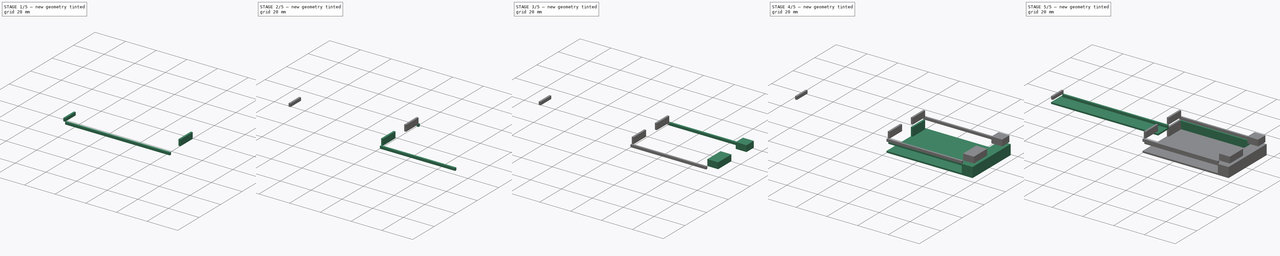
[diagram: build sequence overview — one tinted view per stage of 5, left to right]
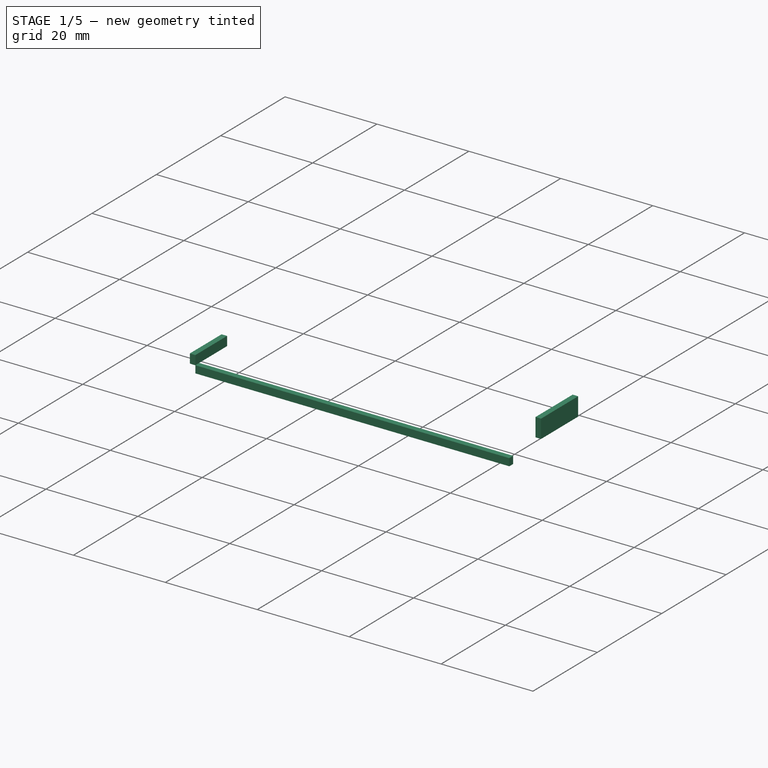
[diagram: stage 1 of 5 — iso view after this stage's code; geometry added in this stage tinted green]
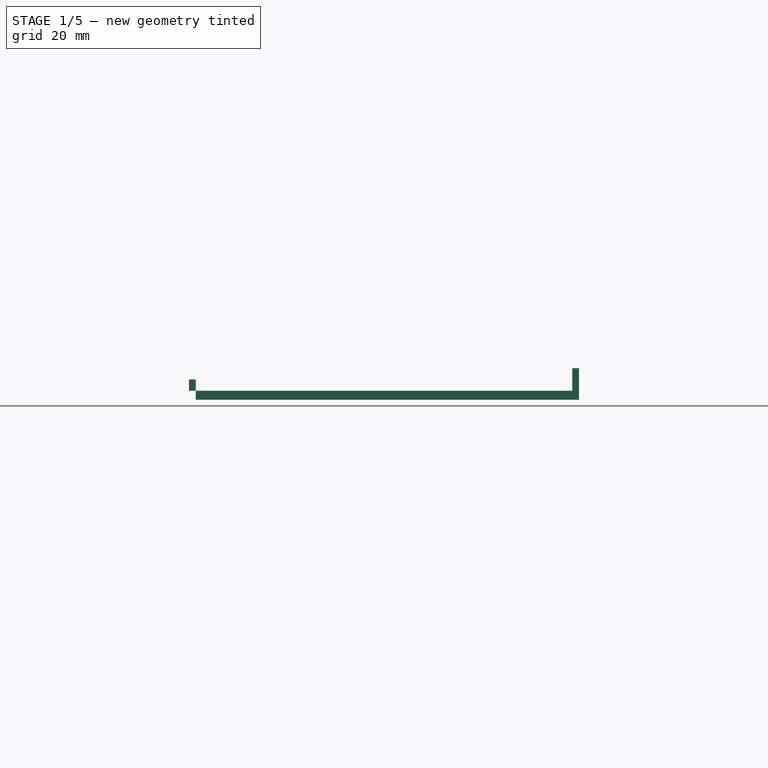
[diagram: stage 1 of 5 — front view after this stage's code; geometry added in this stage tinted green]
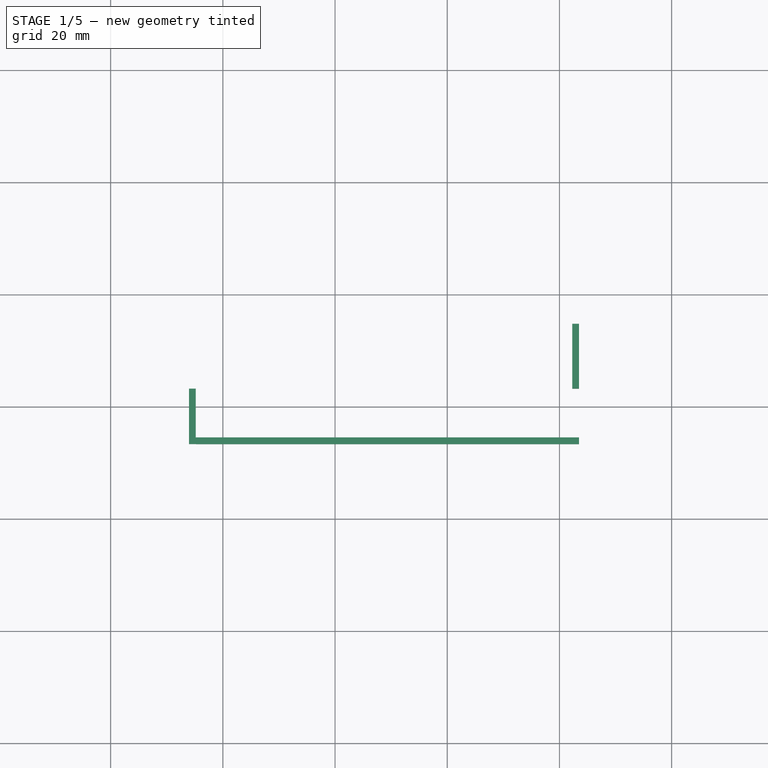
[diagram: stage 1 of 5 — top view after this stage's code; geometry added in this stage tinted green]
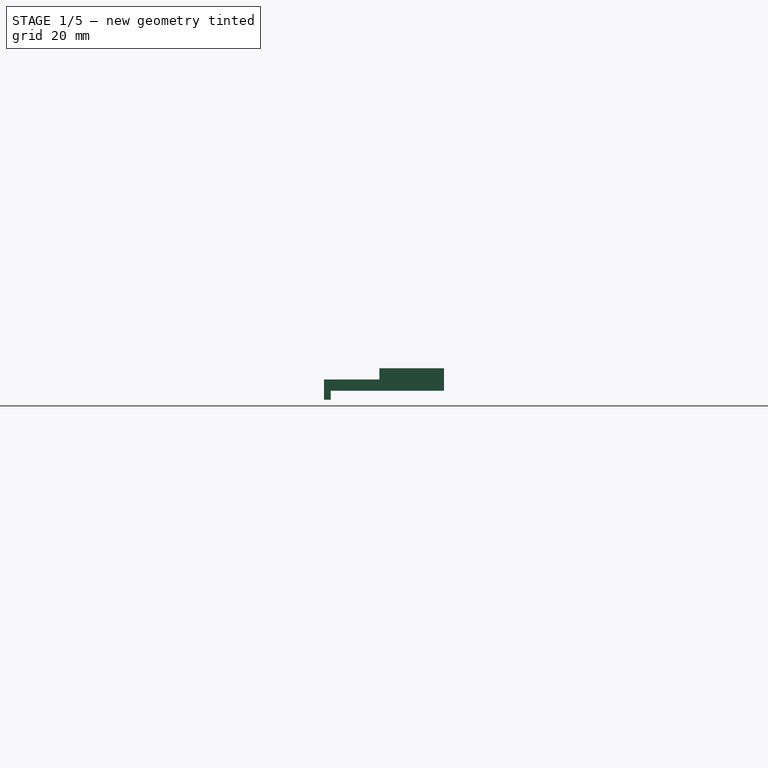
[diagram: stage 1 of 5 — right view after this stage's code; geometry added in this stage tinted green]
FCSTD DOCUMENT  (FreeCAD 0.21R33771 (Git))
Label: Arsenic-Case-Bottom
License: All rights reserved
LicenseURL: https://en.wikipedia.org/wiki/All_rights_reserved
objects: Part::Feature×25, Part::Extrusion×25, Sketcher::SketchObject×15, Part::RuledSurface×9, PartDesign::Body×1
note: 75 computed .brp shape members not serialized (recipe doc carries the construction recipe); baked Part::Feature solids carry a one-line shape summary decoded from their .brp

FEATURE [Part::Feature] Wire004
  shape: bbox 68.33 x 2e-07 x 1.6 mm, 0 faces, 0 solids (baked)
FEATURE [Part::Extrusion] Extrude004
  Base = -> Wire004
  Dir = (0,-1,0)
  DirMode = 0
  FaceMakerClass = Part::FaceMakerBullseye
  LengthFwd = 1.2
  LengthRev = 0
  Solid = true
  Symmetric = false
FEATURE [Part::Feature] Wire005
  shape: bbox 2e-07 x 9.868 x 1.6 mm, 0 faces, 0 solids (baked)
FEATURE [Part::Extrusion] Extrude005
  Base = -> Wire005
  Dir = (-1,0,0)
  DirMode = 0
  FaceMakerClass = Part::FaceMakerBullseye
  LengthFwd = 1.2
  LengthRev = 0
  Solid = true
  Symmetric = false
FEATURE [Part::Feature] Wire007
  shape: bbox 1.2 x 2e-07 x 1.6 mm, 0 faces, 0 solids (baked)
FEATURE [Part::Extrusion] Extrude007
  Base = -> Wire007
  Dir = (0,-1,0)
  DirMode = 0
  FaceMakerClass = Part::FaceMakerBullseye
  LengthFwd = 11.535
  LengthRev = 0
  Solid = true
  Symmetric = false
FEATURE [Sketcher::SketchObject] Sketch010
  ExternalGeometry = -> [Extrude007]
  FullyConstrained = true
  MapMode = 5
  Placement = pos=(0,0,1.6) rot=(0,0,1;0rad)
  Support = -> [Extrude007]
  sketch-geometry (4):
    g0: LineSegment StartX=-17.714 StartY=-5.2484 StartZ=0 EndX=-16.514 EndY=-5.2484 EndZ=0
    g1: LineSegment StartX=-17.714 StartY=-16.7834 StartZ=0 EndX=-16.514 EndY=-16.7834 EndZ=0
    g2: LineSegment StartX=-17.714 StartY=-16.7834 StartZ=0 EndX=-17.714 EndY=-5.2484 EndZ=0
    g3: LineSegment StartX=-16.514 StartY=-16.7834 StartZ=0 EndX=-16.514 EndY=-5.2484 EndZ=0
  constraints (8):
    c: Coincident(g0,g-3)
    c: Coincident(g0,g-4)
    c: Coincident(g1,g-3)
    c: Coincident(g1,g-4)
    c: Coincident(g2,g1)
    c: Coincident(g2,g0)
    c: Coincident(g3,g1)
    c: Coincident(g3,g0)
FEATURE [Part::Extrusion] Extrude030
  Base = -> Sketch010
  Dir = (0,0,1)
  DirMode = 2
  FaceMakerClass = Part::FaceMakerBullseye
  LengthFwd = 4
  LengthRev = 0
  Solid = true
  Symmetric = false
FEATURE [Sketcher::SketchObject] Sketch011
  ExternalGeometry = -> [Extrude004]
  FullyConstrained = false
  MapMode = 5
  Placement = pos=(0,0,1.6) rot=(0,0,1;0rad)
  Support = -> [Extrude004]
  sketch-geometry (4):
    g0: LineSegment StartX=-84.836 StartY=-25.4508 StartZ=0 EndX=-84.836 EndY=-26.6508 EndZ=0
    g1: LineSegment StartX=-73.016 StartY=-25.4508 StartZ=0 EndX=-73.016 EndY=-26.6508 EndZ=0
    g2: LineSegment StartX=-84.836 StartY=-25.4508 StartZ=0 EndX=-73.016 EndY=-25.4508 EndZ=0
    g3: LineSegment StartX=-84.836 StartY=-26.6508 StartZ=0 EndX=-73.016 EndY=-26.6508 EndZ=0
  constraints (10):
    c: Coincident(g0,g-4)
    c: Coincident(g0,g-3)
    c: PointOnObject(g1,g-4)
    c: PointOnObject(g1,g-3)
    c: Vertical(g1)
    c: Coincident(g2,g0)
    c: Coincident(g2,g1)
    c: Coincident(g3,g0)
    c: Coincident(g3,g1)
    c: Distance(g2) = 11.82
FEATURE [Sketcher::SketchObject] Sketch012
  FullyConstrained = false
  MapMode = 5
  Placement = pos=(0,0,1.6) rot=(0,0,1;0rad)
  Support = -> [Extrude004]
  sketch-geometry (4):
    g0: LineSegment StartX=-71.22 StartY=-16.782 StartZ=0 EndX=-71.22 EndY=-26.652 EndZ=0
    g1: LineSegment StartX=-16.51 StartY=-16.782 StartZ=0 EndX=-16.51 EndY=-26.652 EndZ=0
    g2: LineSegment StartX=-16.51 StartY=-16.782 StartZ=0 EndX=-71.22 EndY=-16.782 EndZ=0
    g3: LineSegment StartX=-16.51 StartY=-26.652 StartZ=0 EndX=-71.22 EndY=-26.652 EndZ=0
  constraints (11):
    c: Vertical(g0)
    c: Coincident(g2,g1)
    c: Coincident(g2,g0)
    c: Coincident(g3,g1)
    c: Coincident(g3,g0)
    c: Equal(g2,g3)
    c: DistanceX(g2,g2) = 54.71
    c: DistanceX(g3,g3) = 54.71
    c: DistanceY(g0,g0) = 9.87
    c: DistanceY(g1,g1) = 9.87
    c: Angle(g2,g1) = 1.5708
FEATURE [Part::Extrusion] Extrude020
  Base = -> Sketch
  Dir = (0,0,4)
  DirMode = 0
  FaceMakerClass = Part::FaceMakerBullseye
  LengthFwd = 2
  LengthRev = 0
  Solid = true
  Symmetric = false
FEATURE [Sketcher::SketchObject] Sketch013
  ExternalGeometry = -> [Extrude005]
  FullyConstrained = true
  MapMode = 5
  Placement = pos=(0,0,1.6) rot=(0,0,1;0rad)
  Support = -> [Extrude005]
  sketch-geometry (4):
    g0: LineSegment StartX=-86.036 StartY=-25.4508 StartZ=0 EndX=-84.836 EndY=-25.4508 EndZ=0
    g1: LineSegment StartX=-86.036 StartY=-26.6508 StartZ=0 EndX=-84.836 EndY=-26.6508 EndZ=0
    g2: LineSegment StartX=-84.836 StartY=-26.6508 StartZ=0 EndX=-84.836 EndY=-25.4508 EndZ=0
    g3: LineSegment StartX=-86.036 StartY=-25.4508 StartZ=0 EndX=-86.036 EndY=-26.6508 EndZ=0
  constraints (8):
    c: Coincident(g0,g-3)
    c: Coincident(g0,g-3)
    c: Coincident(g1,g-4)
    c: Coincident(g1,g-4)
    c: Coincident(g2,g1)
    c: Coincident(g2,g0)
    c: Coincident(g3,g0)
    c: Coincident(g3,g1)
FEATURE [Sketcher::SketchObject] Sketch014
  ExternalGeometry = -> [Extrude005]
  FullyConstrained = true
  MapMode = 5
  Placement = pos=(0,0,1.6) rot=(0,0,1;0rad)
  Support = -> [Extrude005]
  sketch-geometry (4):
    g0: LineSegment StartX=-86.036 StartY=-16.7832 StartZ=0 EndX=-84.836 EndY=-16.7832 EndZ=0
    g1: LineSegment StartX=-86.036 StartY=-17.9832 StartZ=0 EndX=-84.836 EndY=-17.9832 EndZ=0
    g2: LineSegment StartX=-86.036 StartY=-16.7832 StartZ=0 EndX=-86.036 EndY=-17.9832 EndZ=0
    g3: LineSegment StartX=-84.836 StartY=-16.7832 StartZ=0 EndX=-84.836 EndY=-17.9832 EndZ=0
  constraints (8):
    c: Coincident(g0,g-3)
    c: Coincident(g0,g-3)
    c: Coincident(g1,g-4)
    c: Coincident(g1,g-4)
    c: Coincident(g2,g0)
    c: Coincident(g2,g1)
    c: Coincident(g3,g0)
    c: Coincident(g3,g1)
FEATURE [Sketcher::SketchObject] Sketch015
  FullyConstrained = false
  MapMode = 5
  Placement = pos=(0,0,5.6) rot=(0,0,1;0rad)
  sketch-geometry (4):
    g0: LineSegment StartX=-17.714 StartY=-4.0484 StartZ=0 EndX=38.212 EndY=-4.0484 EndZ=0
    g1: LineSegment StartX=38.212 StartY=-4.0484 StartZ=0 EndX=38.212 EndY=-39.399 EndZ=0
    g2: LineSegment StartX=38.212 StartY=-39.399 StartZ=0 EndX=-17.714 EndY=-39.399 EndZ=0
    g3: LineSegment StartX=-17.714 StartY=-39.399 StartZ=0 EndX=-17.714 EndY=-4.0484 EndZ=0
  constraints (4):
    c: Coincident(g1,g0)
    c: Coincident(g2,g1)
    c: Coincident(g3,g2)
    c: Coincident(g3,g0)
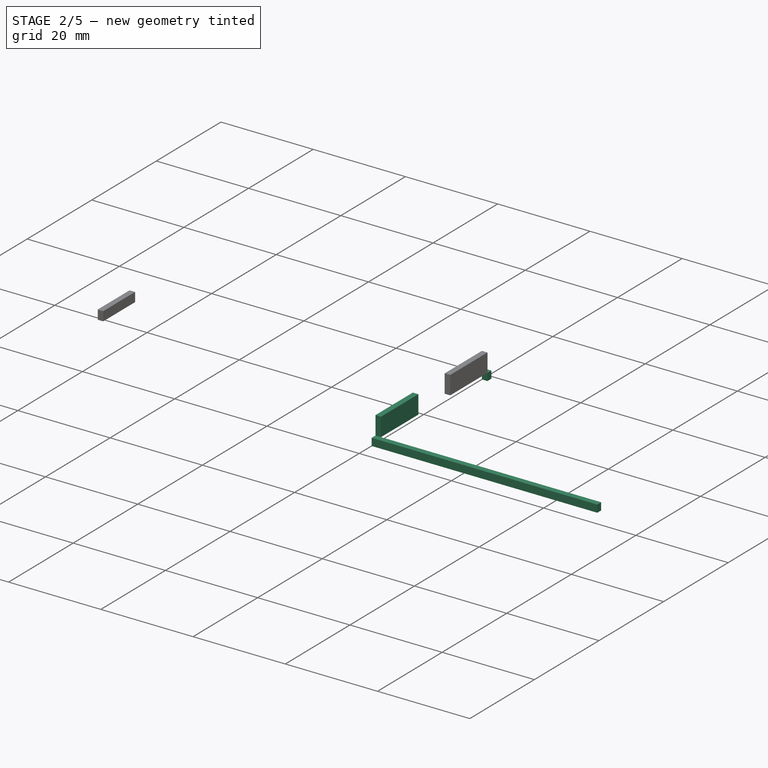
[diagram: stage 2 of 5 — iso view after this stage's code; geometry added in this stage tinted green]
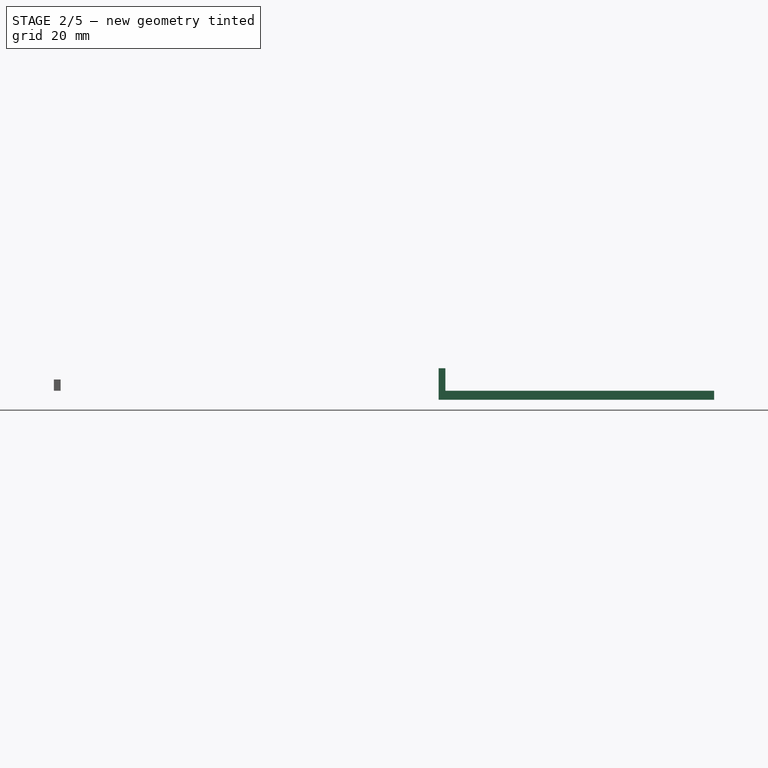
[diagram: stage 2 of 5 — front view after this stage's code; geometry added in this stage tinted green]
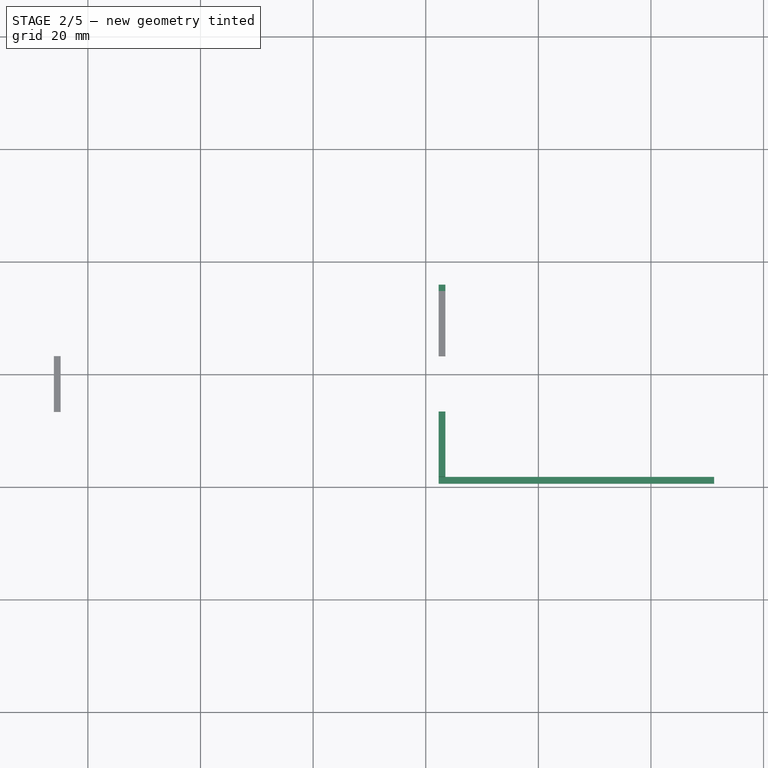
[diagram: stage 2 of 5 — top view after this stage's code; geometry added in this stage tinted green]
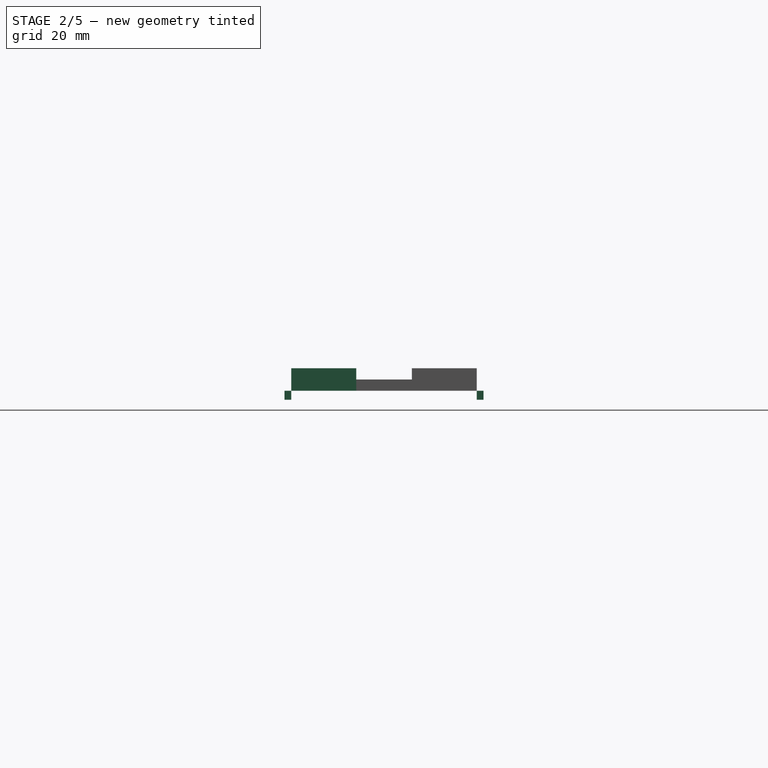
[diagram: stage 2 of 5 — right view after this stage's code; geometry added in this stage tinted green]
FEATURE [Part::Feature] Wire001
  shape: bbox 47.73 x 2e-07 x 1.6 mm, 0 faces, 0 solids (baked)
FEATURE [Part::Extrusion] Extrude001
  Base = -> Wire001
  Dir = (0,-1,0)
  DirMode = 2
  FaceMakerClass = Part::FaceMakerBullseye
  LengthFwd = 1.2
  LengthRev = 0
  Solid = true
  Symmetric = false
FEATURE [Part::Feature] Wire006
  shape: bbox 2e-07 x 1.2 x 1.6 mm, 0 faces, 0 solids (baked)
FEATURE [Part::Extrusion] Extrude006
  Base = -> Wire006
  Dir = (-1,0,0)
  DirMode = 2
  FaceMakerClass = Part::FaceMakerBullseye
  LengthFwd = 1.2
  LengthRev = 0
  Solid = true
  Symmetric = false
FEATURE [Part::Feature] Wire008
  shape: bbox 2e-07 x 1.2 x 1.6 mm, 0 faces, 0 solids (baked)
FEATURE [Part::Extrusion] Extrude008
  Base = -> Wire008
  Dir = (-1,0,0)
  DirMode = 0
  FaceMakerClass = Part::FaceMakerBullseye
  LengthFwd = 1.2
  LengthRev = 0
  Solid = true
  Symmetric = false
FEATURE [Part::Feature] Wire009
  shape: bbox 1.2 x 2e-07 x 1.6 mm, 0 faces, 0 solids (baked)
FEATURE [Part::Extrusion] Extrude009
  Base = -> Wire009
  Dir = (0,1,0)
  DirMode = 0
  FaceMakerClass = Part::FaceMakerBullseye
  LengthFwd = 11.55
  LengthRev = 0
  Solid = true
  Symmetric = false
FEATURE [Part::Feature] Extrude021_cs
  shape: bbox 7 x 12.25 x 3e-07 mm, 0 faces, 0 solids (baked)
FEATURE [Part::Feature] Extrude021_cs001
  shape: bbox 7 x 12.25 x 3e-07 mm, 0 faces, 0 solids (baked)
FEATURE [Part::Feature] Extrude022_cs
  shape: bbox 7 x 6.709 x 3e-07 mm, 0 faces, 0 solids (baked)
FEATURE [Part::Feature] Extrude022_cs001
  shape: bbox 7 x 6.709 x 3e-07 mm, 0 faces, 0 solids (baked)
FEATURE [Sketcher::SketchObject] Sketch003
  ExternalGeometry = -> [Extrude021_cs,Extrude002,Extrude001]
  FullyConstrained = true
  MapMode = 5
  Placement = pos=(0,0,1.6) rot=(0,0,1;0rad)
  Support = -> [Extrude002]
  sketch-geometry (4):
    g0: LineSegment StartX=31.212 StartY=-38.199 StartZ=0 EndX=38.212 EndY=-38.199 EndZ=0
    g1: LineSegment StartX=38.212 StartY=-38.199 StartZ=0 EndX=38.212 EndY=-39.399 EndZ=0
    g2: LineSegment StartX=38.212 StartY=-39.399 StartZ=0 EndX=31.212 EndY=-39.399 EndZ=0
    g3: LineSegment StartX=31.212 StartY=-39.399 StartZ=0 EndX=31.212 EndY=-38.199 EndZ=0
  constraints (8):
    c: Coincident(g0,g-6)
    c: Coincident(g0,g-5)
    c: Coincident(g1,g0)
    c: Coincident(g1,g-5)
    c: Coincident(g2,g1)
    c: Coincident(g2,g-6)
    c: Coincident(g3,g2)
    c: Coincident(g3,g0)
FEATURE [Sketcher::SketchObject] Sketch004
  ExternalGeometry = -> [Extrude001]
  FullyConstrained = false
  MapMode = 5
  Placement = pos=(0,0,1.6) rot=(0,0,1;0rad)
  Support = -> [Extrude001]
  sketch-geometry (4):
    g0: LineSegment StartX=28.752 StartY=-38.199 StartZ=0 EndX=28.752 EndY=-39.399 EndZ=0
    g1: LineSegment StartX=31.212 StartY=-38.199 StartZ=0 EndX=31.212 EndY=-39.399 EndZ=0
    g2: LineSegment StartX=31.212 StartY=-38.199 StartZ=0 EndX=28.752 EndY=-38.199 EndZ=0
    g3: LineSegment StartX=31.212 StartY=-39.399 StartZ=0 EndX=28.752 EndY=-39.399 EndZ=0
  constraints (11):
    c: Vertical(g0)
    c: Coincident(g1,g-3)
    c: Coincident(g1,g-4)
    c: Coincident(g2,g1)
    c: Coincident(g2,g0)
    c: Coincident(g3,g0)
    c: Horizontal(g3)
    c: Equal(g2,g3)
    c: Equal(g0,g1)
    c: Distance(g2) = 2.46
    c: Distance(g3) = 2.46
FEATURE [Sketcher::SketchObject] Sketch005
  ExternalGeometry = -> [Extrude001]
  FullyConstrained = false
  MapMode = 5
  Placement = pos=(0,0,1.6) rot=(0,0,1;0rad)
  Support = -> [Extrude001]
  sketch-geometry (4):
    g0: LineSegment StartX=19.0081 StartY=-38.199 StartZ=0 EndX=19.0081 EndY=-39.399 EndZ=0
    g1: LineSegment StartX=11.2851 StartY=-38.199 StartZ=0 EndX=11.2851 EndY=-39.399 EndZ=0
    g2: LineSegment StartX=11.2851 StartY=-38.199 StartZ=0 EndX=19.0081 EndY=-38.199 EndZ=0
    g3: LineSegment StartX=11.2851 StartY=-39.399 StartZ=0 EndX=19.0081 EndY=-39.399 EndZ=0
  constraints (12):
    c: PointOnObject(g0,g-3)
    c: Vertical(g0)
    c: PointOnObject(g1,g-4)
    c: Vertical(g1)
    c: Coincident(g2,g1)
    c: Coincident(g2,g0)
    c: Horizontal(g2)
    c: PointOnObject(g3,g-4)
    c: Coincident(g3,g0)
    c: Horizontal(g3)
    c: Equal(g2,g3)
    c: Equal(g1,g0)
FEATURE [Sketcher::SketchObject] Sketch006
  ExternalGeometry = -> [Extrude,Extrude002,Extrude006]
  FullyConstrained = true
  MapMode = 5
  Placement = pos=(0,0,1.6) rot=(0,0,1;0rad)
  Support = -> [Extrude]
  sketch-geometry (4):
    g0: LineSegment StartX=-17.714 StartY=-4.0484 StartZ=0 EndX=38.212 EndY=-4.0484 EndZ=0
    g1: LineSegment StartX=-17.714 StartY=-5.2484 StartZ=0 EndX=38.212 EndY=-5.2484 EndZ=0
    g2: LineSegment StartX=-17.714 StartY=-4.0484 StartZ=0 EndX=-17.714 EndY=-5.2484 EndZ=0
    g3: LineSegment StartX=38.212 StartY=-4.0484 StartZ=0 EndX=38.212 EndY=-5.2484 EndZ=0
  constraints (8):
    c: Coincident(g0,g-7)
    c: Coincident(g0,g-5)
    c: Coincident(g1,g-6)
    c: Coincident(g1,g-5)
    c: Coincident(g2,g0)
    c: Coincident(g2,g1)
    c: Coincident(g3,g0)
    c: Coincident(g3,g1)
FEATURE [Sketcher::SketchObject] Sketch007
  ExternalGeometry = -> [Extrude008,Extrude001]
  FullyConstrained = false
  MapMode = 5
  Placement = pos=(0,0,1.6) rot=(0,0,1;0rad)
  Support = -> [Extrude001]
  sketch-geometry (4):
    g0: LineSegment StartX=-17.714 StartY=-38.199 StartZ=0 EndX=-17.714 EndY=-39.399 EndZ=0
    g1: LineSegment StartX=5.636 StartY=-38.199 StartZ=0 EndX=5.636 EndY=-39.399 EndZ=0
    g2: LineSegment StartX=-17.714 StartY=-38.199 StartZ=0 EndX=5.636 EndY=-38.199 EndZ=0
    g3: LineSegment StartX=-17.714 StartY=-39.399 StartZ=0 EndX=5.636 EndY=-39.399 EndZ=0
  constraints (10):
    c: Coincident(g0,g-3)
    c: Coincident(g0,g-4)
    c: PointOnObject(g1,g-5)
    c: PointOnObject(g1,g-6)
    c: Vertical(g1)
    c: Coincident(g2,g0)
    c: Coincident(g2,g1)
    c: Coincident(g3,g0)
    c: Coincident(g3,g1)
    c: DistanceX(g2,g2) = 23.35
FEATURE [Sketcher::SketchObject] Sketch009
  ExternalGeometry = -> [Extrude009,Extrude004]
  FullyConstrained = false
  MapMode = 5
  Placement = pos=(0,0,1.6) rot=(0,0,1;0rad)
  Support = -> [Extrude009]
  sketch-geometry (4):
    g0: LineSegment StartX=-17.714 StartY=-26.649 StartZ=0 EndX=-16.51 EndY=-26.6508 EndZ=0
    g1: LineSegment StartX=-17.714 StartY=-38.199 StartZ=0 EndX=-16.514 EndY=-38.199 EndZ=0
    g2: LineSegment StartX=-17.714 StartY=-26.649 StartZ=0 EndX=-17.714 EndY=-38.199 EndZ=0
    g3: LineSegment StartX=-16.51 StartY=-26.6508 StartZ=0 EndX=-16.514 EndY=-38.199 EndZ=0
  constraints (8):
    c: Coincident(g0,g-4)
    c: Coincident(g0,g-5)
    c: Coincident(g1,g-4)
    c: Coincident(g1,g-3)
    c: Coincident(g2,g0)
    c: Coincident(g2,g1)
    c: Coincident(g3,g0)
    c: Coincident(g3,g1)
FEATURE [Part::Extrusion] Extrude029
  Base = -> Sketch009
  Dir = (0,0,1)
  DirMode = 2
  FaceMakerClass = Part::FaceMakerBullseye
  LengthFwd = 4
  LengthRev = 0
  Solid = true
  Symmetric = false
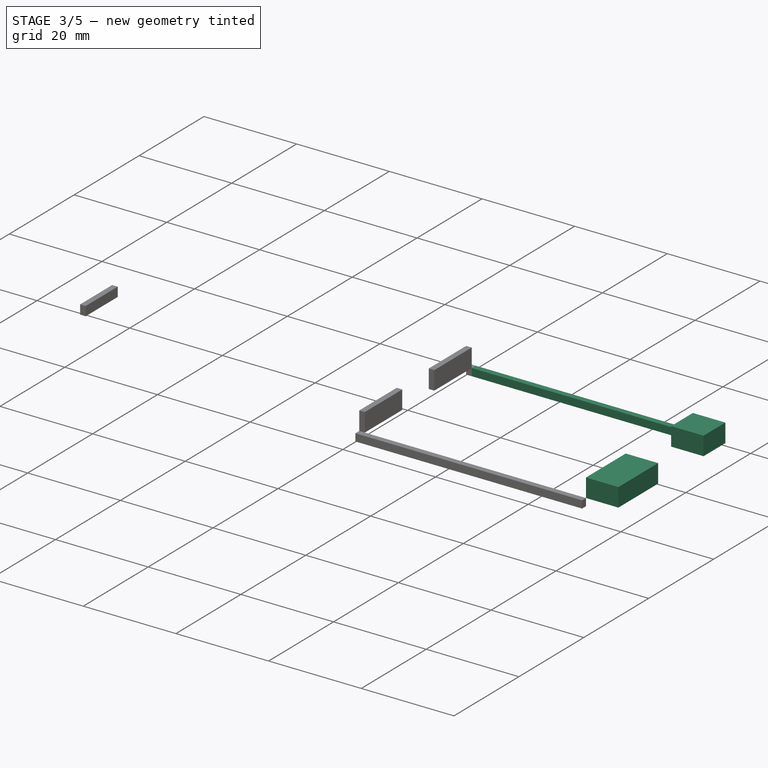
[diagram: stage 3 of 5 — iso view after this stage's code; geometry added in this stage tinted green]
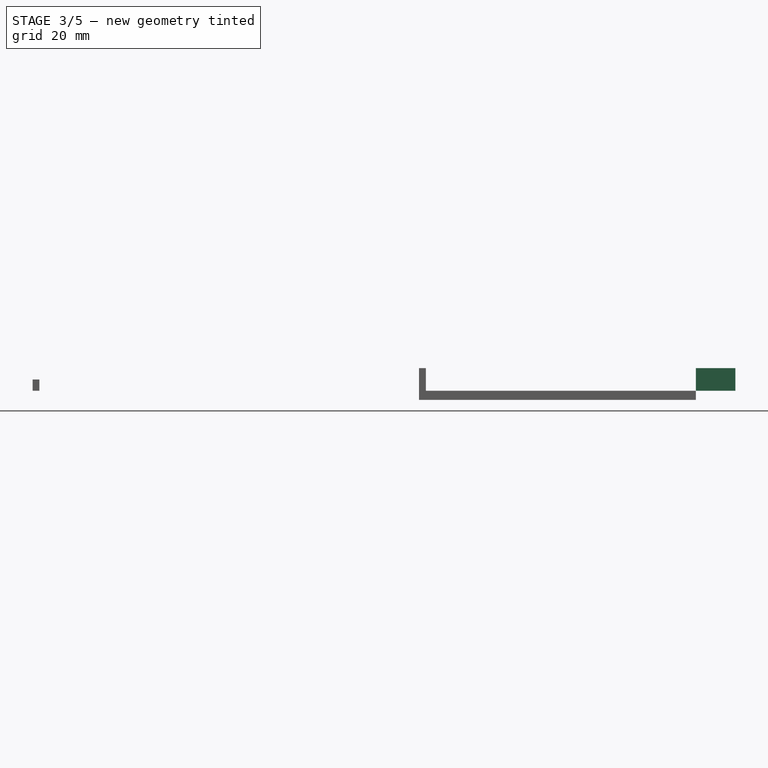
[diagram: stage 3 of 5 — front view after this stage's code; geometry added in this stage tinted green]
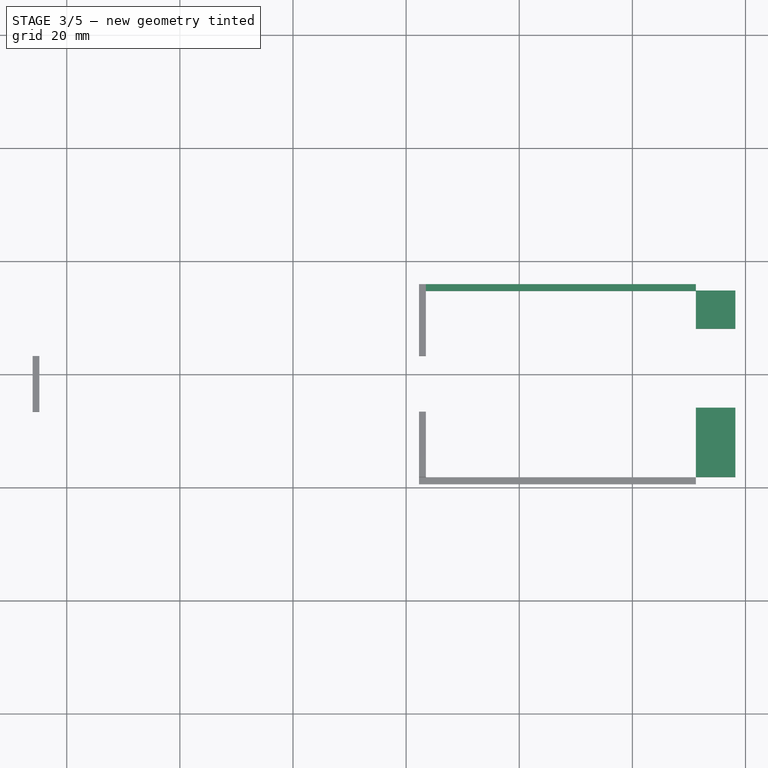
[diagram: stage 3 of 5 — top view after this stage's code; geometry added in this stage tinted green]
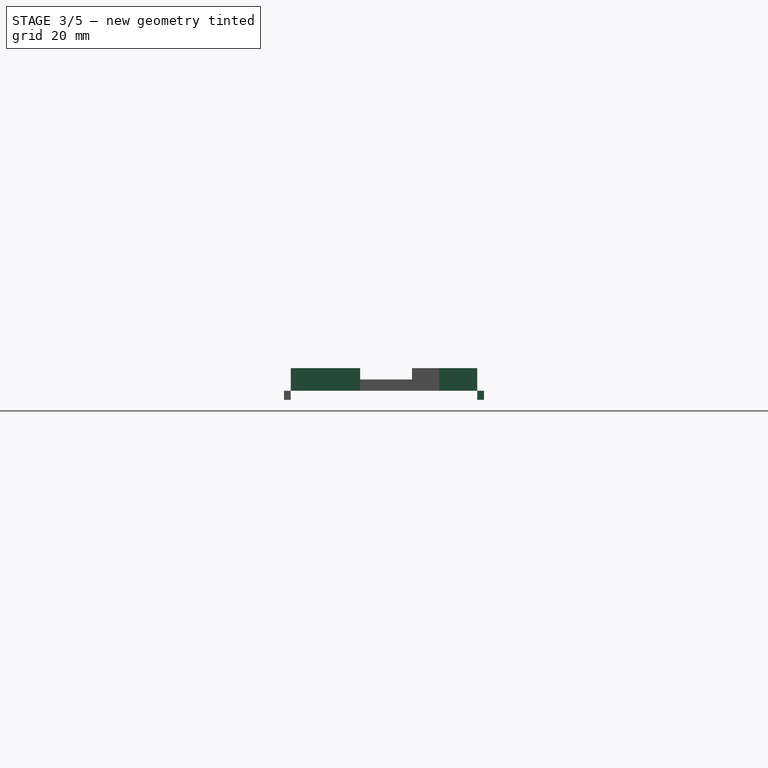
[diagram: stage 3 of 5 — right view after this stage's code; geometry added in this stage tinted green]
FEATURE [PartDesign::Body] Body
  Origin = -> Origin
FEATURE [Part::Feature] Wire
  shape: bbox 47.73 x 2e-07 x 1.6 mm, 0 faces, 0 solids (baked)
FEATURE [Part::Extrusion] Extrude
  Base = -> Wire
  Dir = (0,1,0)
  DirMode = 0
  FaceMakerClass = Part::FaceMakerBullseye
  LengthFwd = 1.2
  LengthRev = 0
  Solid = true
  Symmetric = false
FEATURE [Part::Feature] Wire002
  shape: bbox 2e-07 x 35.35 x 1.6 mm, 0 faces, 0 solids (baked)
FEATURE [Part::Extrusion] Extrude002
  Base = -> Wire002
  Dir = (1,0,0)
  DirMode = 0
  FaceMakerClass = Part::FaceMakerBullseye
  LengthFwd = 7
  LengthRev = 0
  Solid = true
  Symmetric = false
FEATURE [Sketcher::SketchObject] Sketch
  ExternalGeometry = -> [Extrude005]
  FullyConstrained = true
  MapMode = 5
  Placement = pos=(0,0,1.6) rot=(0,0,1;0rad)
  Support = -> [Extrude005]
  sketch-geometry (4):
    g0: LineSegment StartX=-86.036 StartY=-16.7832 StartZ=0 EndX=-84.836 EndY=-16.7832 EndZ=0
    g1: LineSegment StartX=-86.036 StartY=-26.6508 StartZ=0 EndX=-84.836 EndY=-26.6508 EndZ=0
    g2: LineSegment StartX=-86.036 StartY=-16.7832 StartZ=0 EndX=-86.036 EndY=-26.6508 EndZ=0
    g3: LineSegment StartX=-84.836 StartY=-26.6508 StartZ=0 EndX=-84.836 EndY=-16.7832 EndZ=0
  constraints (8):
    c: Coincident(g0,g-3)
    c: Coincident(g0,g-3)
    c: Coincident(g1,g-4)
    c: Coincident(g1,g-4)
    c: Coincident(g2,g0)
    c: Coincident(g2,g1)
    c: Coincident(g3,g1)
    c: Coincident(g3,g0)
FEATURE [Sketcher::SketchObject] Sketch001
  ExternalGeometry = -> [Extrude002]
  FullyConstrained = false
  MapMode = 5
  Placement = pos=(0,0,1.6) rot=(0,0,1;0rad)
  Support = -> [Extrude002]
  sketch-geometry (4):
    g0: LineSegment StartX=31.212 StartY=-25.9467 StartZ=0 EndX=38.212 EndY=-25.9467 EndZ=0
    g1: LineSegment StartX=31.212 StartY=-25.9467 StartZ=0 EndX=31.212 EndY=-38.199 EndZ=0
    g2: LineSegment StartX=31.212 StartY=-38.199 StartZ=0 EndX=38.212 EndY=-38.199 EndZ=0
    g3: LineSegment StartX=38.212 StartY=-38.199 StartZ=0 EndX=38.212 EndY=-25.9467 EndZ=0
  constraints (9):
    c: PointOnObject(g0,g-5)
    c: PointOnObject(g0,g-4)
    c: Horizontal(g0)
    c: Coincident(g1,g0)
    c: Coincident(g1,g-5)
    c: Coincident(g2,g1)
    c: Coincident(g2,g-4)
    c: Coincident(g3,g2)
    c: Coincident(g3,g0)
FEATURE [Part::Extrusion] Extrude021
  Base = -> Sketch001
  Dir = (0,0,3)
  DirMode = 0
  FaceMakerClass = Part::FaceMakerBullseye
  LengthFwd = 4
  LengthRev = 0
  Solid = true
  Symmetric = false
FEATURE [Sketcher::SketchObject] Sketch002
  ExternalGeometry = -> [Extrude002]
  FullyConstrained = false
  MapMode = 5
  Placement = pos=(0,0,1.6) rot=(0,0,1;0rad)
  Support = -> [Extrude002]
  sketch-geometry (4):
    g0: LineSegment StartX=31.212 StartY=-5.2484 StartZ=0 EndX=38.212 EndY=-5.2484 EndZ=0
    g1: LineSegment StartX=31.212 StartY=-11.9578 StartZ=0 EndX=38.212 EndY=-11.9578 EndZ=0
    g2: LineSegment StartX=31.212 StartY=-5.2484 StartZ=0 EndX=31.212 EndY=-11.9578 EndZ=0
    g3: LineSegment StartX=38.212 StartY=-5.2484 StartZ=0 EndX=38.212 EndY=-11.9578 EndZ=0
  constraints (9):
    c: Coincident(g0,g-4)
    c: Coincident(g0,g-5)
    c: PointOnObject(g1,g-4)
    c: PointOnObject(g1,g-5)
    c: Horizontal(g1)
    c: Coincident(g2,g0)
    c: Coincident(g2,g1)
    c: Coincident(g3,g0)
    c: Coincident(g3,g1)
FEATURE [Part::Extrusion] Extrude022
  Base = -> Sketch002
  Dir = (0,0,-3)
  DirMode = 0
  FaceMakerClass = Part::FaceMakerBullseye
  LengthFwd = -4
  LengthRev = 0
  Solid = true
  Symmetric = false
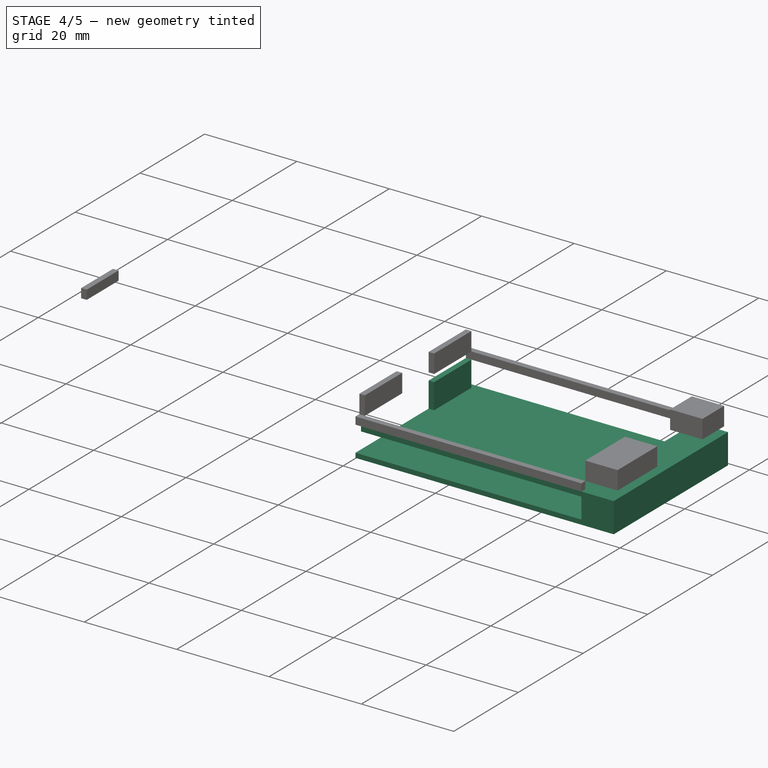
[diagram: stage 4 of 5 — iso view after this stage's code; geometry added in this stage tinted green]
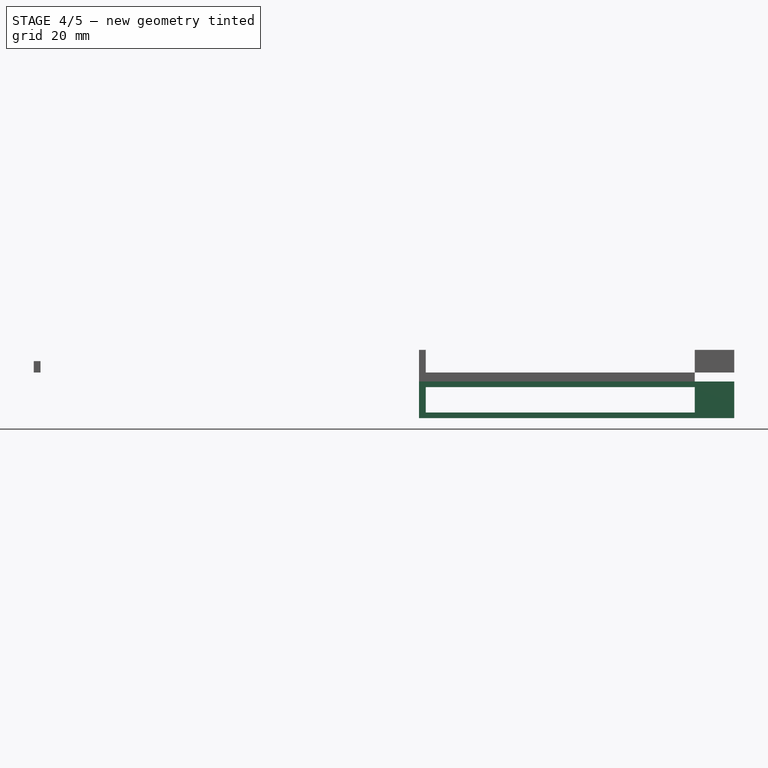
[diagram: stage 4 of 5 — front view after this stage's code; geometry added in this stage tinted green]
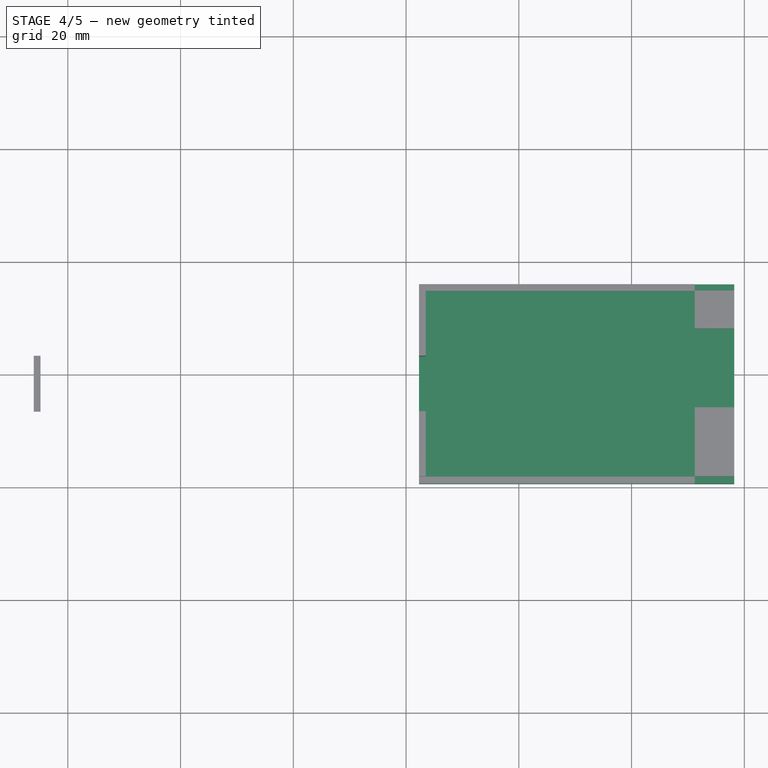
[diagram: stage 4 of 5 — top view after this stage's code; geometry added in this stage tinted green]
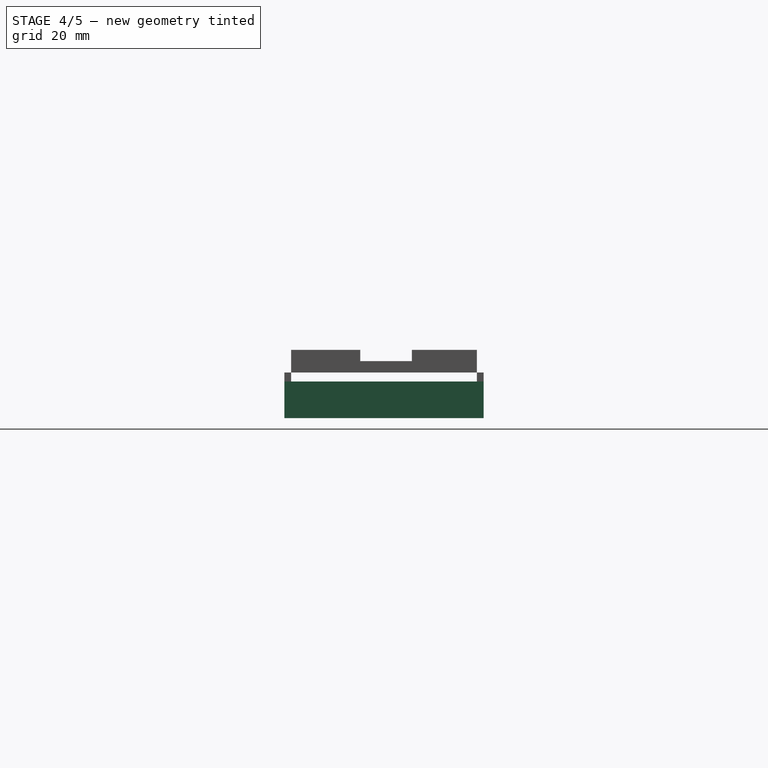
[diagram: stage 4 of 5 — right view after this stage's code; geometry added in this stage tinted green]
FEATURE [Part::Feature] Wire011
  shape: bbox 7 x 35.35 x 2e-07 mm, 0 faces, 0 solids (baked)
FEATURE [Part::Extrusion] Extrude011
  Base = -> Wire011
  Dir = (0,0,-1)
  DirMode = 2
  FaceMakerClass = Part::FaceMakerBullseye
  LengthFwd = 5.5
  LengthRev = 0
  Solid = true
  Symmetric = false
FEATURE [Part::Feature] Wire014
  shape: bbox 1.2 x 11.54 x 2e-07 mm, 0 faces, 0 solids (baked)
FEATURE [Part::Extrusion] Extrude014
  Base = -> Wire014
  Dir = (0,0,-1)
  DirMode = 2
  FaceMakerClass = Part::FaceMakerBullseye
  LengthFwd = 5.5
  LengthRev = 0
  Solid = true
  Symmetric = false
FEATURE [Part::Feature] Wire016
  shape: bbox 47.73 x 1.2 x 2e-07 mm, 0 faces, 0 solids (baked)
FEATURE [Part::Extrusion] Extrude016
  Base = -> Wire016
  Dir = (0,0,-1)
  DirMode = 2
  FaceMakerClass = Part::FaceMakerBullseye
  LengthFwd = 1
  LengthRev = 0
  Solid = true
  Symmetric = false
FEATURE [Part::Feature] Wire017
  shape: bbox 47.73 x 2e-07 x 1 mm, 0 faces, 0 solids (baked)
FEATURE [Part::Extrusion] Extrude017
  Base = -> Wire017
  Dir = (0,1,0)
  DirMode = 2
  FaceMakerClass = Part::FaceMakerBullseye
  LengthFwd = 1
  LengthRev = 0
  Solid = true
  Symmetric = false
FEATURE [Part::Feature] Wire018
  shape: bbox 1.2 x 12.75 x 2e-07 mm, 0 faces, 0 solids (baked)
FEATURE [Part::Extrusion] Extrude018
  Base = -> Wire018
  Dir = (0,0,-1)
  DirMode = 0
  FaceMakerClass = Part::FaceMakerBullseye
  LengthFwd = 5.5
  LengthRev = 0
  Solid = false
  Symmetric = false
FEATURE [Part::RuledSurface] Ruled_Surface
  Curve1 = -> Extrude018 [Edge1]
  Curve2 = -> Extrude018 [Edge14]
  Orientation = 0
FEATURE [Part::RuledSurface] Ruled_Surface001
  Curve1 = -> Extrude018 [Edge16]
  Curve2 = -> Extrude018 [Edge4]
  Orientation = 0
FEATURE [Part::RuledSurface] Ruled_Surface002
  Curve1 = -> Extrude018 [Edge13]
  Curve2 = -> Extrude018 [Edge7]
  Orientation = 0
FEATURE [Part::Feature] Wire019
  shape: bbox 47.73 x 2e-07 x 2e-07 mm, 0 faces, 0 solids (baked)
FEATURE [Part::RuledSurface] Ruled_Surface003
  Curve1 = -> Extrude011 [Edge1]
  Curve2 = -> Extrude018 [Edge8]
  Orientation = 0
FEATURE [Part::RuledSurface] Ruled_Surface004
  Curve1 = -> Extrude018 [Edge11]
  Curve2 = -> Extrude011 [Edge20]
  Orientation = 0
FEATURE [Part::RuledSurface] Ruled_Surface005
  Curve1 = -> Ruled_Surface004 [Edge4]
  Curve2 = -> Ruled_Surface003 [Edge2]
  Orientation = 0
FEATURE [Part::RuledSurface] Ruled_Surface006
  Curve1 = -> Ruled_Surface [Edge2]
  Curve2 = -> Extrude014 [Edge7]
  Orientation = 0
FEATURE [Part::RuledSurface] Ruled_Surface007
  Curve1 = -> Extrude014 [Edge5]
  Curve2 = -> Extrude018 [Edge1]
  Orientation = 0
FEATURE [Part::RuledSurface] Ruled_Surface008
  Curve1 = -> Extrude018 [Edge14]
  Curve2 = -> Extrude014 [Edge2]
  Orientation = 0
FEATURE [Part::Feature] Wire020
  shape: bbox 55.93 x 35.35 x 2e-07 mm, 0 faces, 0 solids (baked)
FEATURE [Part::Extrusion] Extrude019
  Base = -> Wire020
  Dir = (0,0,-1)
  DirMode = 0
  FaceMakerClass = Part::FaceMakerBullseye
  LengthFwd = 1
  LengthRev = 0
  Solid = true
  Symmetric = false
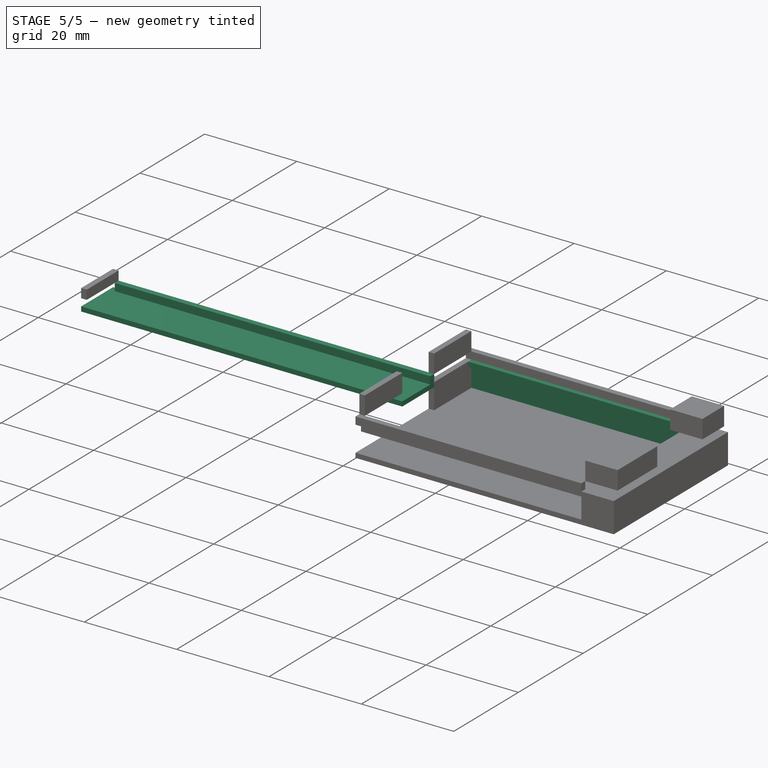
[diagram: stage 5 of 5 — iso view after this stage's code; geometry added in this stage tinted green]
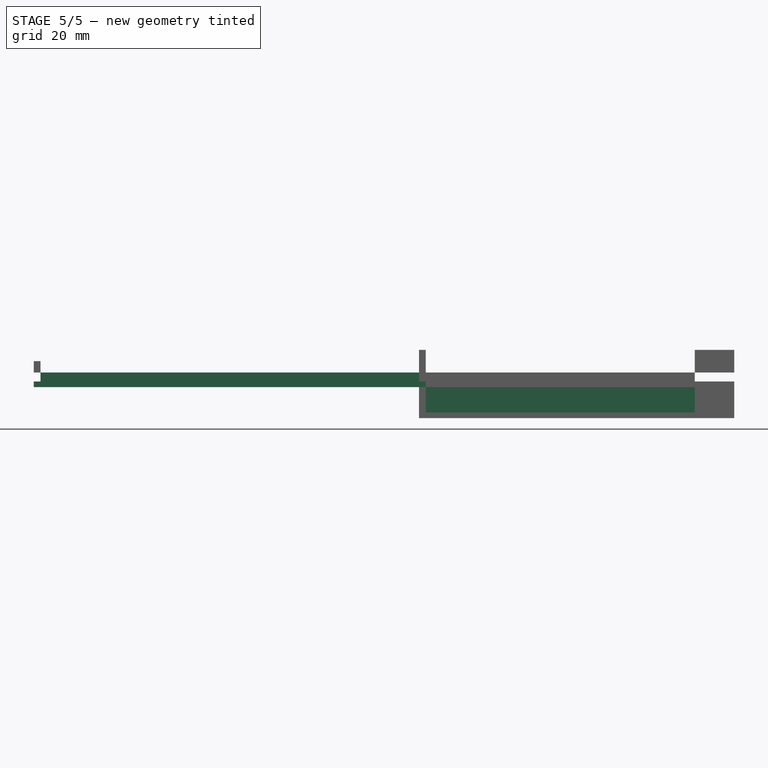
[diagram: stage 5 of 5 — front view after this stage's code; geometry added in this stage tinted green]
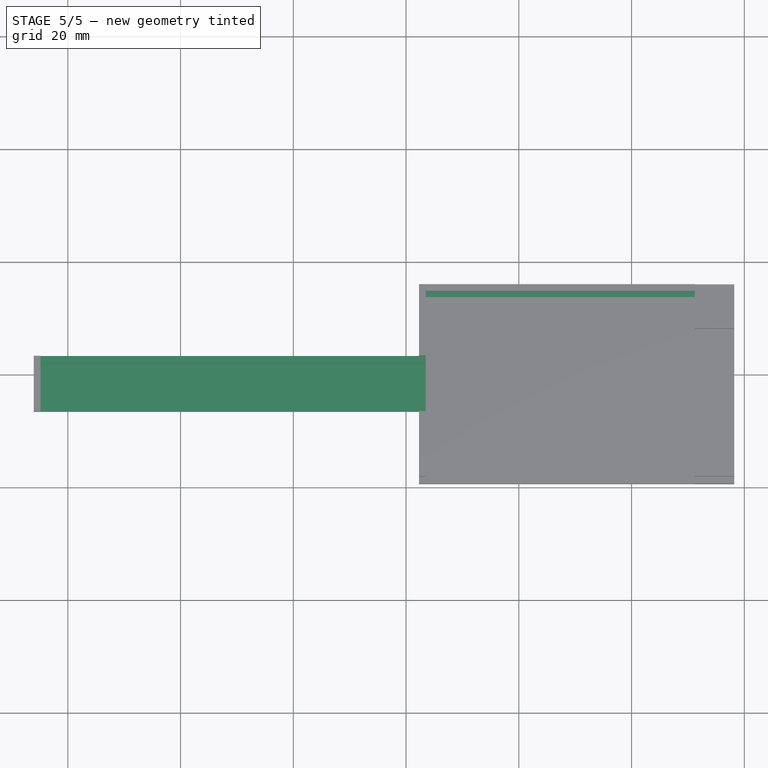
[diagram: stage 5 of 5 — top view after this stage's code; geometry added in this stage tinted green]
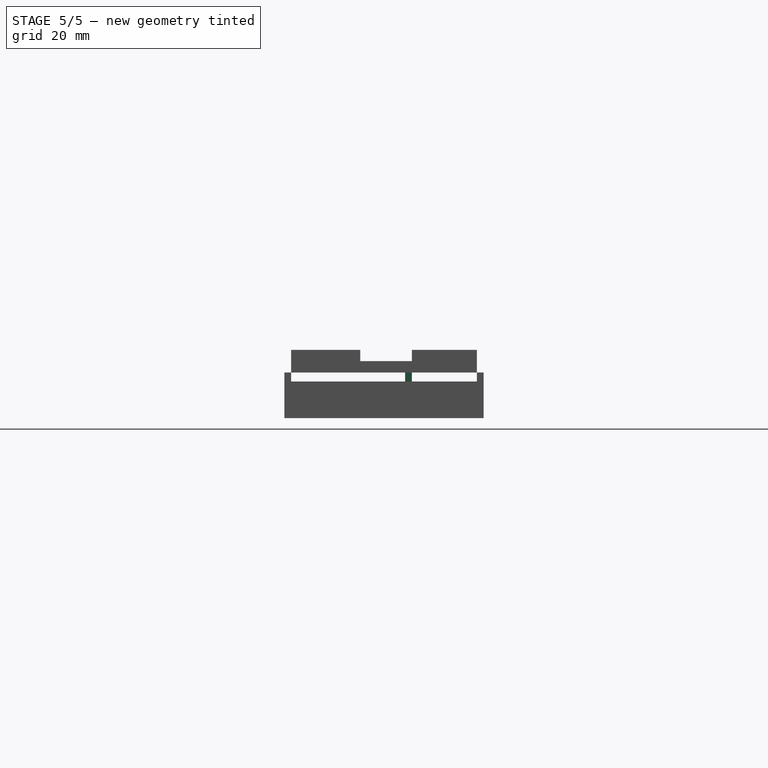
[diagram: stage 5 of 5 — right view after this stage's code; geometry added in this stage tinted green]
FEATURE [Part::Feature] Wire003
  shape: bbox 68.33 x 2e-07 x 1.6 mm, 0 faces, 0 solids (baked)
FEATURE [Part::Extrusion] Extrude003
  Base = -> Wire003
  Dir = (0,1,0)
  DirMode = 0
  FaceMakerClass = Part::FaceMakerBullseye
  LengthFwd = 1.2
  LengthRev = 0
  Solid = true
  Symmetric = false
FEATURE [Part::Feature] Wire010
  shape: bbox 69.53 x 9.868 x 2e-07 mm, 0 faces, 0 solids (baked)
FEATURE [Part::Extrusion] Extrude010
  Base = -> Wire010
  Dir = (0,0,-1)
  DirMode = 2
  FaceMakerClass = Part::FaceMakerBullseye
  LengthFwd = 1
  LengthRev = 0
  Solid = true
  Symmetric = false
FEATURE [Part::Feature] Wire012
  shape: bbox 48.93 x 1.2 x 2e-07 mm, 0 faces, 0 solids (baked)
FEATURE [Part::Extrusion] Extrude012
  Base = -> Wire012
  Dir = (0,0,-1)
  DirMode = 0
  FaceMakerClass = Part::FaceMakerBullseye
  LengthFwd = 1
  LengthRev = 0
  Solid = true
  Symmetric = false
FEATURE [Part::Feature] Wire013
  shape: bbox 47.73 x 2e-07 x 1 mm, 0 faces, 0 solids (baked)
FEATURE [Part::Extrusion] Extrude013
  Base = -> Wire013
  Dir = (0,-1,0)
  DirMode = 0
  FaceMakerClass = Part::FaceMakerBullseye
  LengthFwd = 1
  LengthRev = 0
  Solid = true
  Symmetric = false
FEATURE [Part::Feature] Wire015
  shape: bbox 48.93 x 1.2 x 2e-07 mm, 0 faces, 0 solids (baked)
FEATURE [Part::Extrusion] Extrude015
  Base = -> Wire015
  Dir = (0,0,-1)
  DirMode = 0
  FaceMakerClass = Part::FaceMakerBullseye
  LengthFwd = 4.5
  LengthRev = 0
  Solid = true
  Symmetric = false
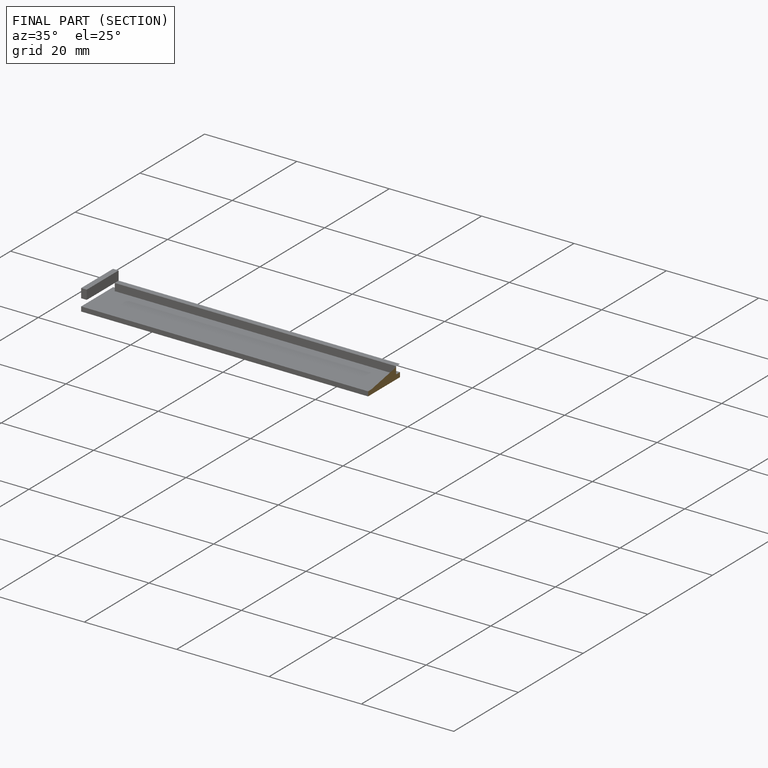
[diagram: finished part — half-section view (interior)]
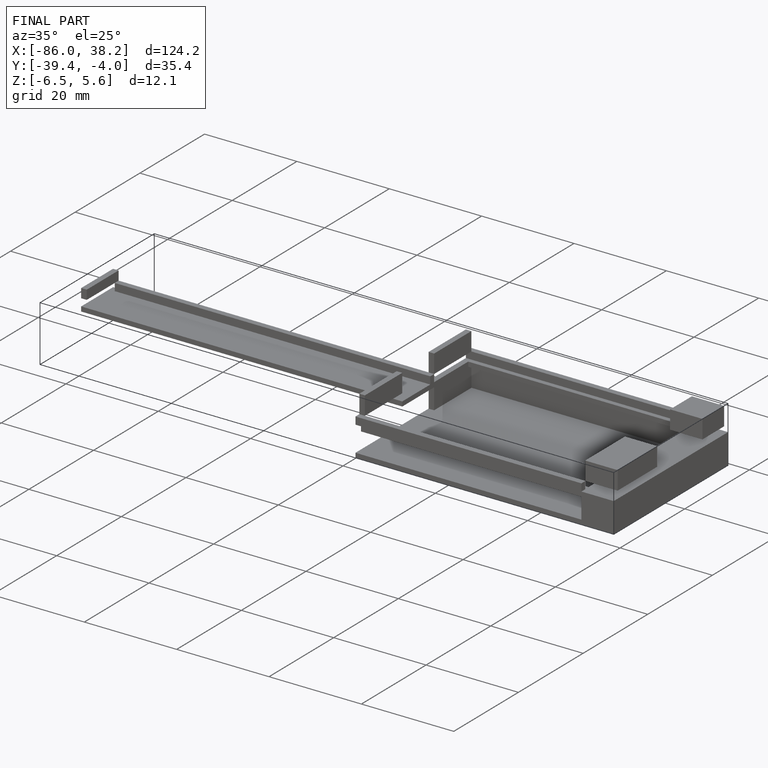
[diagram: finished part — iso view with bounding-box wireframe]
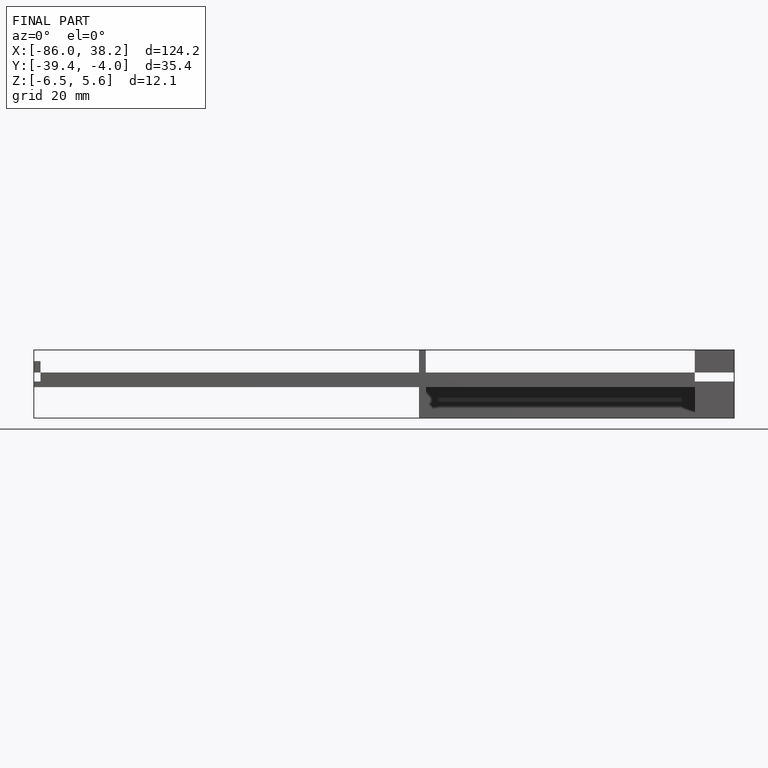
[diagram: finished part — front view with bounding-box wireframe]
